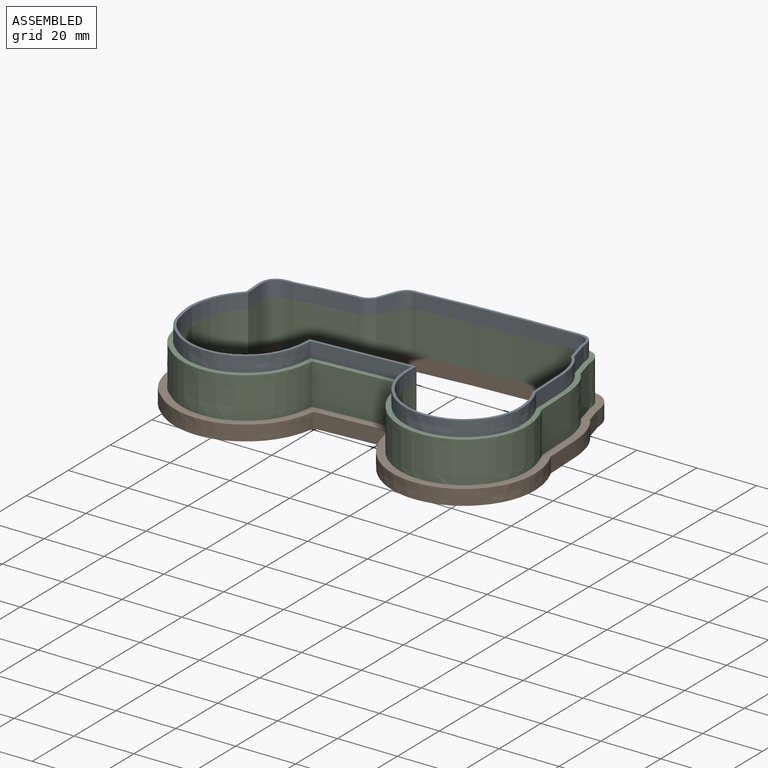
[diagram: assembled view]
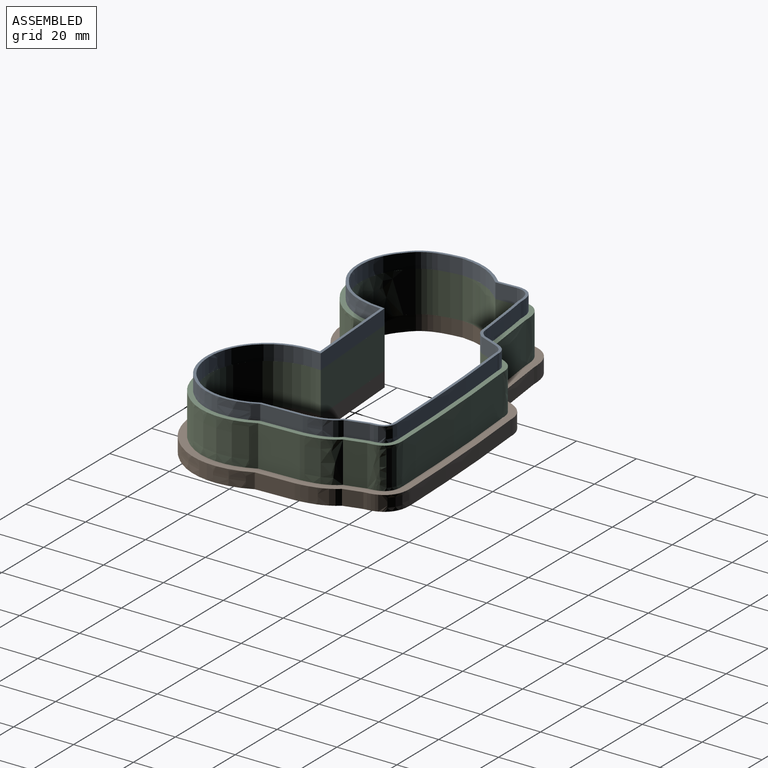
[diagram: assembled view, second angle]
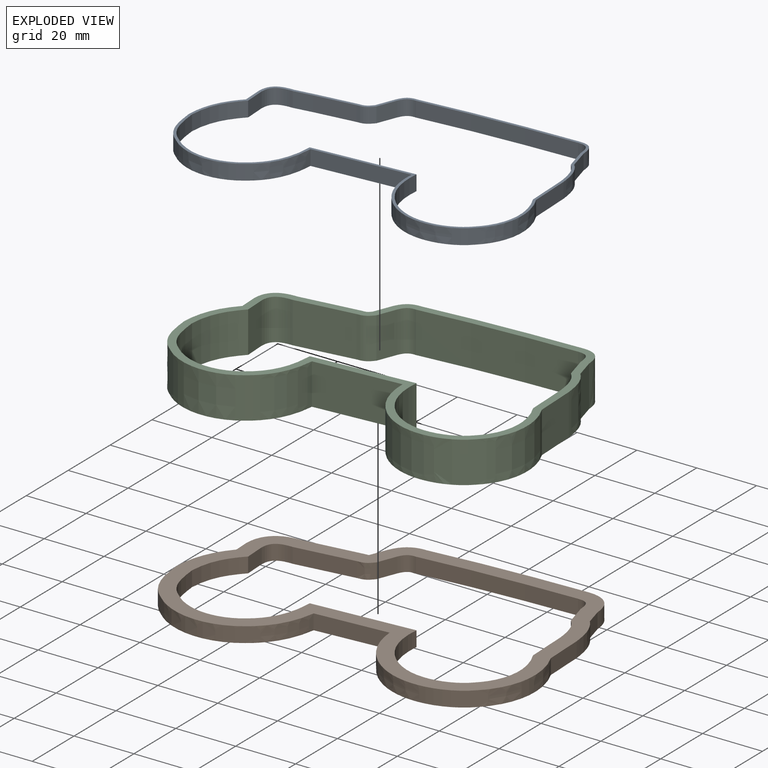
[diagram: exploded view]
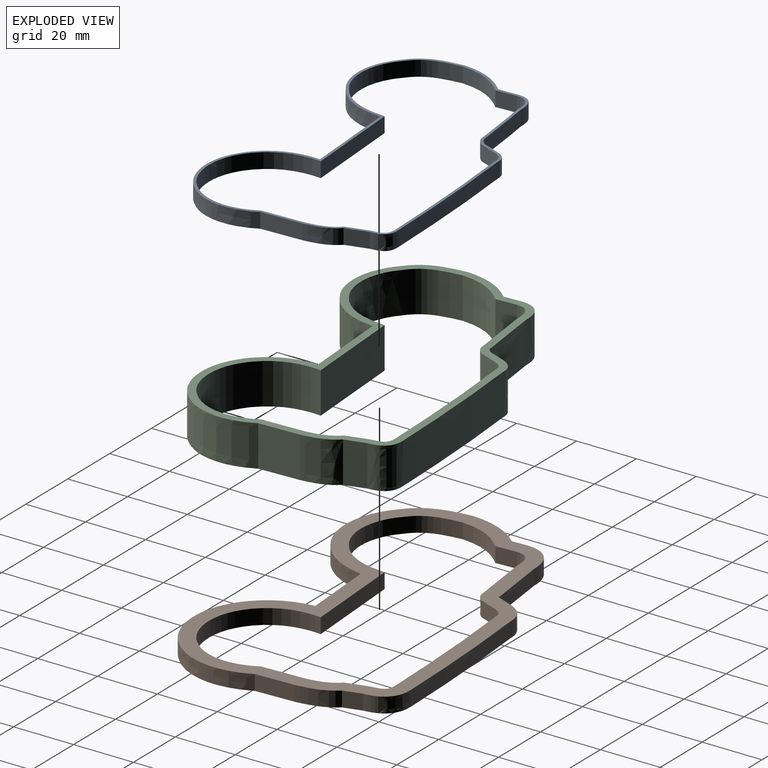
[diagram: exploded view, second angle]
ASSEMBLY  parts=3 mates=2
PART A: 40 faces, bbox 116x71.3x8.5 mm
  f0: plane 115.96x71.34mm, normal (0,0,1), area 303.2mm2, adj f2,f3,f4,f5,f6,f7,f8,f9
  f1: plane 115.96x71.34mm, normal (0,0,-1), area 303.2mm2, adj f2,f3,f4,f5,f6,f7,f8,f9
  f2: extruded ~6.62x5.08mm, area 33.7mm2, adj f0,f1,f3,f20
  f3: extruded ~16.51x7.42mm, area 94.3mm2, adj f0,f1,f2,f4
  f4: extruded ~16x6.69mm, area 91.1mm2, adj f0,f1,f3,f5
  f5: extruded ~24.43x5.38mm, area 134.9mm2, adj f0,f1,f4,f6
  f6: extruded ~18.08x9.25mm, area 107.3mm2, adj f0,f1,f5,f7
  f7: plane 32.14x5.08mm, normal (0.07,-1,0), area 163.7mm2, adj f0,f1,f6,f8
  f8: extruded ~18.22x6.62mm, area 101.8mm2, adj f0,f1,f7,f9
  f9: extruded ~27.48x5.49mm, area 154.2mm2, adj f0,f1,f8,f10
  f10: extruded ~24.36x6.01mm, area 134.7mm2, adj f0,f1,f9,f11
  f11: plane 13.86x5.08mm, normal (1,0.04,0), area 70.4mm2, adj f0,f1,f10,f12
  f12: extruded ~10.83x5.08mm, area 59.9mm2, adj f0,f1,f11,f13
  f13: plane 7.35x5.08mm, normal (0.96,0.26,0), area 38.7mm2, adj f0,f1,f12,f14
  f14: extruded ~5.75x5.29mm, area 46mm2, adj f0,f1,f13,f15
  f15: extruded ~51.91x5.08mm, area 264.3mm2, adj f0,f1,f14,f16
  f16: extruded ~5.08x5.05mm, area 33.4mm2, adj f0,f1,f15,f17
  f17: plane 6.25x5.08mm, normal (-0.93,0.37,0), area 34.2mm2, adj f0,f1,f16,f18
  f18: extruded ~5.08x4.15mm, area 24.6mm2, adj f0,f1,f17,f19
  f19: extruded ~19.64x5.08mm, area 100.6mm2, adj f0,f1,f18,f20
  f20: extruded ~7.63x5.99mm, area 56.7mm2, adj f0,f1,f2,f19
  f21: extruded ~6.97x5.08mm, area 35.4mm2, adj f0,f1,f22,f39
  f22: extruded ~16.16x7.44mm, area 92.7mm2, adj f0,f1,f21,f23
  f23: extruded ~15.34x6.37mm, area 87.3mm2, adj f0,f1,f22,f24
  f24: extruded ~23.34x5.17mm, area 129mm2, adj f0,f1,f23,f25
  f25: extruded ~18.19x8.91mm, area 107.2mm2, adj f0,f1,f24,f26
  f26: plane 33.97x5.08mm, normal (-0.07,1,0), area 173mm2, adj f0,f1,f25,f27
  f27: extruded ~18.53x6.34mm, area 103mm2, adj f0,f1,f26,f28
  f28: extruded ~26.25x5.23mm, area 147.2mm2, adj f0,f1,f27,f29
  f29: extruded ~23.49x5.76mm, area 130mm2, adj f0,f1,f28,f30
  f30: plane 14.04x5.08mm, normal (-1,-0.04,0), area 71.4mm2, adj f0,f1,f29,f31
  f31: extruded ~10.42x5.08mm, area 57.8mm2, adj f0,f1,f30,f32
  f32: plane 7.67x5.08mm, normal (-0.96,-0.26,0), area 40.4mm2, adj f0,f1,f31,f33
  f33: extruded ~5.08x5.01mm, area 39.5mm2, adj f0,f1,f32,f34
  f34: extruded ~51.91x5.08mm, area 264.2mm2, adj f0,f1,f33,f35
  f35: extruded ~5.08x4.25mm, area 28.2mm2, adj f0,f1,f34,f36
  f36: plane 6.4x5.08mm, normal (0.93,-0.37,0), area 35mm2, adj f0,f1,f35,f37
  f37: extruded ~5.08x4.85mm, area 28.8mm2, adj f0,f1,f36,f38
  f38: extruded ~19.63x5.08mm, area 100.6mm2, adj f0,f1,f37,f39
  f39: extruded ~6.8x5.09mm, area 49.8mm2, adj f0,f1,f21,f38
PART B: 41 faces, bbox 124.3x79.6x8.4 mm
  f0: plane 124.33x79.58mm, normal (0,0,1), area 1789.5mm2, adj f2,f3,f4,f5,f6,f7,f8,f9
  f1: plane 124.33x79.58mm, normal (0,0,-1), area 1789.5mm2, adj f2,f3,f4,f5,f6,f7,f8,f9
  f2: extruded ~5.08x0.1mm, area 0.7mm2, adj f0,f1,f18,f19
  f3: extruded ~5.08x5.02mm, area 25.5mm2, adj f0,f1,f4,f21
  f4: extruded ~18.15x7.34mm, area 101.8mm2, adj f0,f1,f3,f5
  f5: extruded ~19.1x8.17mm, area 109mm2, adj f0,f1,f4,f6
  f6: extruded ~29.57x6.38mm, area 163mm2, adj f0,f1,f5,f7
  f7: extruded ~17.58x10.64mm, area 107.6mm2, adj f0,f1,f6,f8
  f8: plane 24.17x5.08mm, normal (0.07,-1,0), area 123.1mm2, adj f0,f1,f7,f9
  f9: extruded ~16.77x7.85mm, area 96.4mm2, adj f0,f1,f8,f10
  f10: extruded ~33.33x6.72mm, area 187mm2, adj f0,f1,f9,f11
  f11: extruded ~28.41x7.23mm, area 156.8mm2, adj f0,f1,f10,f12
  f12: plane 13.05x5.08mm, normal (1,0.04,0), area 66.4mm2, adj f0,f1,f11,f13
  f13: extruded ~12.61x5.08mm, area 69mm2, adj f0,f1,f12,f14
  f14: plane 5.99x5.08mm, normal (0.96,0.26,0), area 31.6mm2, adj f0,f1,f13,f15
  f15: extruded ~9.52x9.22mm, area 76mm2, adj f0,f1,f14,f16
  f16: extruded ~51.96x5.08mm, area 264.5mm2, adj f0,f1,f15,f17
  f17: extruded ~8.78x5.93mm, area 57.7mm2, adj f0,f1,f16,f18
  f18: plane 5.63x5.08mm, normal (-0.93,0.37,0), area 30.7mm2, adj f0,f1,f2,f17
  f19: extruded ~5.08x0.75mm, area 3.8mm2, adj f0,f1,f2,f20
  f20: extruded ~19.67x5.08mm, area 100.8mm2, adj f0,f1,f19,f21
  f21: extruded ~11.49x10.24mm, area 88.4mm2, adj f0,f1,f3,f20
  f22: extruded ~6.97x5.08mm, area 35.4mm2, adj f0,f1,f23,f40
  f23: extruded ~16.16x7.44mm, area 92.7mm2, adj f0,f1,f22,f24
  f24: extruded ~15.34x6.37mm, area 87.3mm2, adj f0,f1,f23,f25
  f25: extruded ~23.34x5.17mm, area 129mm2, adj f0,f1,f24,f26
  f26: extruded ~18.19x8.91mm, area 107.2mm2, adj f0,f1,f25,f27
  f27: plane 33.97x5.08mm, normal (-0.07,1,0), area 173mm2, adj f0,f1,f26,f28
  f28: extruded ~18.53x6.34mm, area 103mm2, adj f0,f1,f27,f29
  f29: extruded ~26.25x5.23mm, area 147.2mm2, adj f0,f1,f28,f30
  f30: extruded ~23.49x5.76mm, area 130mm2, adj f0,f1,f29,f31
  f31: plane 14.04x5.08mm, normal (-1,-0.04,0), area 71.4mm2, adj f0,f1,f30,f32
  f32: extruded ~10.42x5.08mm, area 57.8mm2, adj f0,f1,f31,f33
  f33: plane 7.67x5.08mm, normal (-0.96,-0.26,0), area 40.4mm2, adj f0,f1,f32,f34
  f34: extruded ~5.08x5.01mm, area 39.5mm2, adj f0,f1,f33,f35
  f35: extruded ~51.91x5.08mm, area 264.2mm2, adj f0,f1,f34,f36
  f36: extruded ~5.08x4.25mm, area 28.2mm2, adj f0,f1,f35,f37
  f37: plane 6.4x5.08mm, normal (0.93,-0.37,0), area 35mm2, adj f0,f1,f36,f38
  f38: extruded ~5.08x4.85mm, area 28.8mm2, adj f0,f1,f37,f39
  f39: extruded ~19.63x5.08mm, area 100.6mm2, adj f0,f1,f38,f40
  f40: extruded ~6.8x5.09mm, area 49.8mm2, adj f0,f1,f22,f39
PART C: 40 faces, bbox 119.3x74.6x17.2 mm
  f0: plane 119.31x74.58mm, normal (0,0,1), area 877.3mm2, adj f2,f3,f4,f5,f6,f7,f8,f9
  f1: plane 119.31x74.58mm, normal (0,0,-1), area 877.3mm2, adj f2,f3,f4,f5,f6,f7,f8,f9
  f2: extruded ~13.72x5.98mm, area 82.2mm2, adj f0,f1,f3,f20
  f3: extruded ~17.17x13.72mm, area 262.4mm2, adj f0,f1,f2,f4
  f4: extruded ~17.22x13.72mm, area 265mm2, adj f0,f1,f3,f5
  f5: extruded ~26.46x13.72mm, area 394.2mm2, adj f0,f1,f4,f6
  f6: extruded ~17.89x13.72mm, area 290mm2, adj f0,f1,f5,f7
  f7: plane 28.88x13.72mm, normal (0.07,-1,0), area 397.1mm2, adj f0,f1,f6,f8
  f8: extruded ~17.64x13.72mm, area 269mm2, adj f0,f1,f7,f9
  f9: extruded ~29.79x13.72mm, area 451.2mm2, adj f0,f1,f8,f10
  f10: extruded ~25.97x13.72mm, area 387.3mm2, adj f0,f1,f9,f11
  f11: plane 13.72x13.53mm, normal (1,0.04,0), area 185.7mm2, adj f0,f1,f10,f12
  f12: extruded ~13.72x11.55mm, area 171.7mm2, adj f0,f1,f11,f13
  f13: plane 13.72x6.79mm, normal (0.96,0.26,0), area 96.6mm2, adj f0,f1,f12,f14
  f14: extruded ~13.72x7.12mm, area 156.3mm2, adj f0,f1,f13,f15
  f15: extruded ~51.92x13.72mm, area 713.7mm2, adj f0,f1,f14,f16
  f16: extruded ~13.72x6.53mm, area 116mm2, adj f0,f1,f15,f17
  f17: plane 13.72x6mm, normal (-0.93,0.37,0), area 88.5mm2, adj f0,f1,f16,f18
  f18: extruded ~13.72x2.85mm, area 44.9mm2, adj f0,f1,f17,f19
  f19: extruded ~19.65x13.72mm, area 271.7mm2, adj f0,f1,f18,f20
  f20: extruded ~13.72x9.15mm, area 187.1mm2, adj f0,f1,f2,f19
  f21: extruded ~13.72x6.97mm, area 95.7mm2, adj f0,f1,f22,f39
  f22: extruded ~16.16x13.72mm, area 250.4mm2, adj f0,f1,f21,f23
  f23: extruded ~15.34x13.72mm, area 235.6mm2, adj f0,f1,f22,f24
  f24: extruded ~23.34x13.72mm, area 348.2mm2, adj f0,f1,f23,f25
  f25: extruded ~18.19x13.72mm, area 289.4mm2, adj f0,f1,f24,f26
  f26: plane 33.97x13.72mm, normal (-0.07,1,0), area 467.1mm2, adj f0,f1,f25,f27
  f27: extruded ~18.53x13.72mm, area 278.2mm2, adj f0,f1,f26,f28
  f28: extruded ~26.25x13.72mm, area 397.5mm2, adj f0,f1,f27,f29
  f29: extruded ~23.49x13.72mm, area 351mm2, adj f0,f1,f28,f30
  f30: plane 14.04x13.72mm, normal (-1,-0.04,0), area 192.7mm2, adj f0,f1,f29,f31
  f31: extruded ~13.72x10.42mm, area 156.1mm2, adj f0,f1,f30,f32
  f32: plane 13.72x7.67mm, normal (-0.96,-0.26,0), area 109.1mm2, adj f0,f1,f31,f33
  f33: extruded ~13.72x5.01mm, area 106.8mm2, adj f0,f1,f32,f34
  f34: extruded ~51.91x13.72mm, area 713.5mm2, adj f0,f1,f33,f35
  f35: extruded ~13.72x4.25mm, area 76.2mm2, adj f0,f1,f34,f36
  f36: plane 13.72x6.4mm, normal (0.93,-0.37,0), area 94.4mm2, adj f0,f1,f35,f37
  f37: extruded ~13.72x4.85mm, area 77.7mm2, adj f0,f1,f36,f38
  f38: extruded ~19.63x13.72mm, area 271.5mm2, adj f0,f1,f37,f39
  f39: extruded ~13.72x6.8mm, area 134.6mm2, adj f0,f1,f21,f38
PLACE A t=(115.6,-14.47,18.8)mm
PLACE B t=(-2.83,-2.75,0)mm
PLACE C t=(225.59,-0.55,5.08)mm
MATE fastened A.f1 <-> C.f0  axis (0,0,1) through (126.44,-22.91,18.8)mm
MATE fastened C.f1 <-> B.f0  axis (0,0,1) through (126.44,-22.91,5.08)mm
